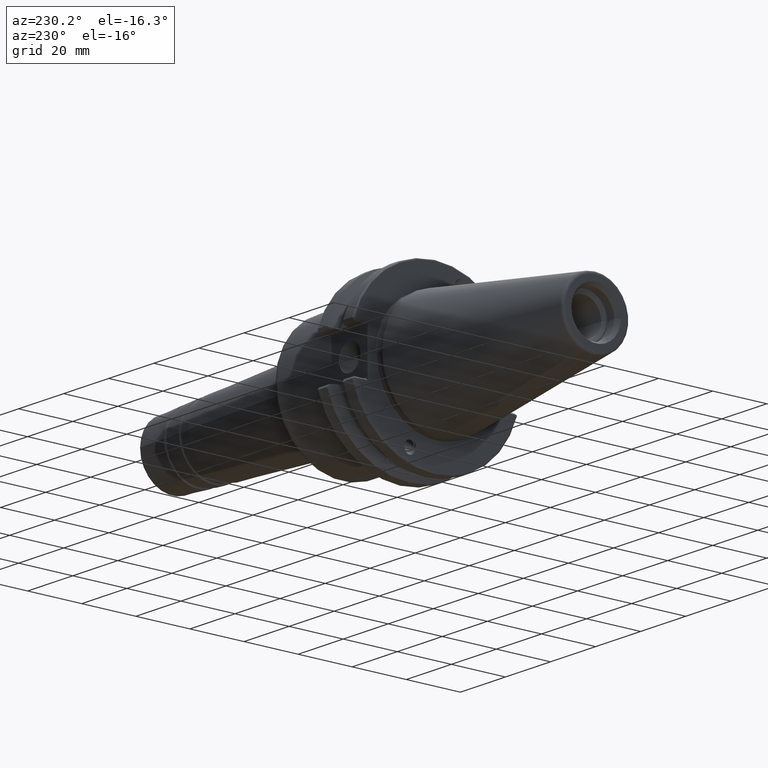
[diagram: clean part render]
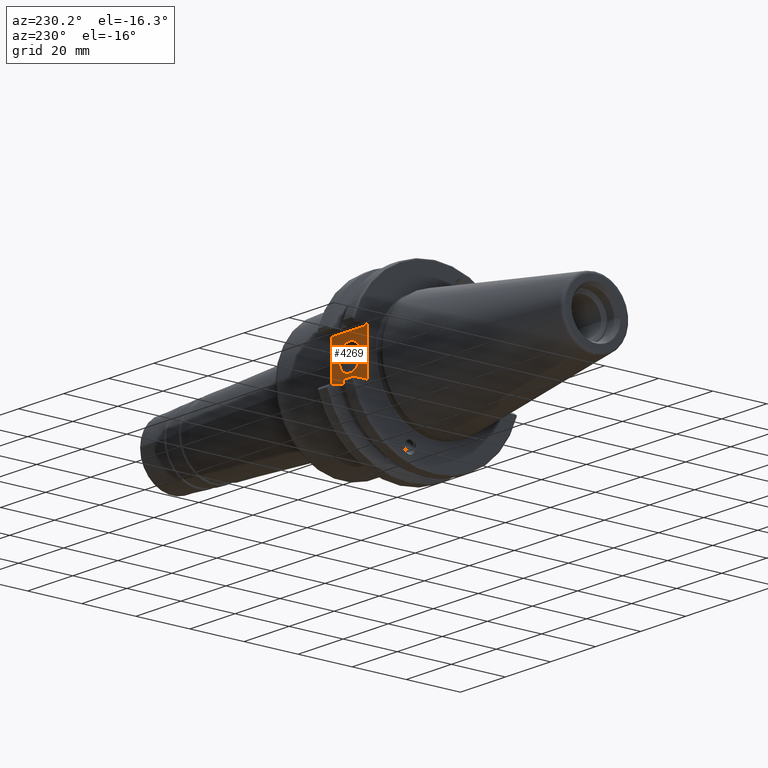
[diagram: same view with one face highlighted and labeled with its STEP entity id]
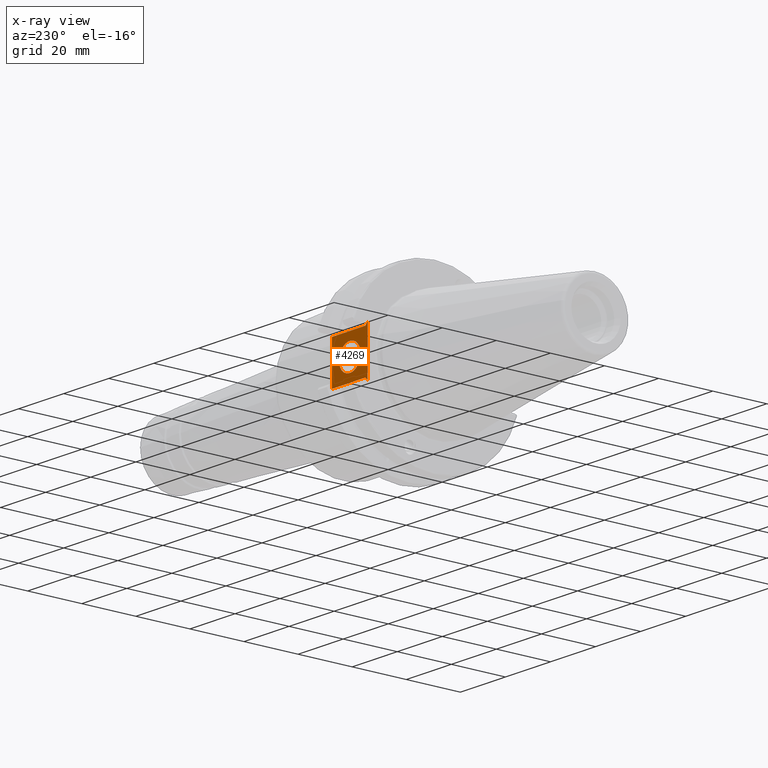
[diagram: x-ray of the same camera — body ghosted, the highlighted face saturated]
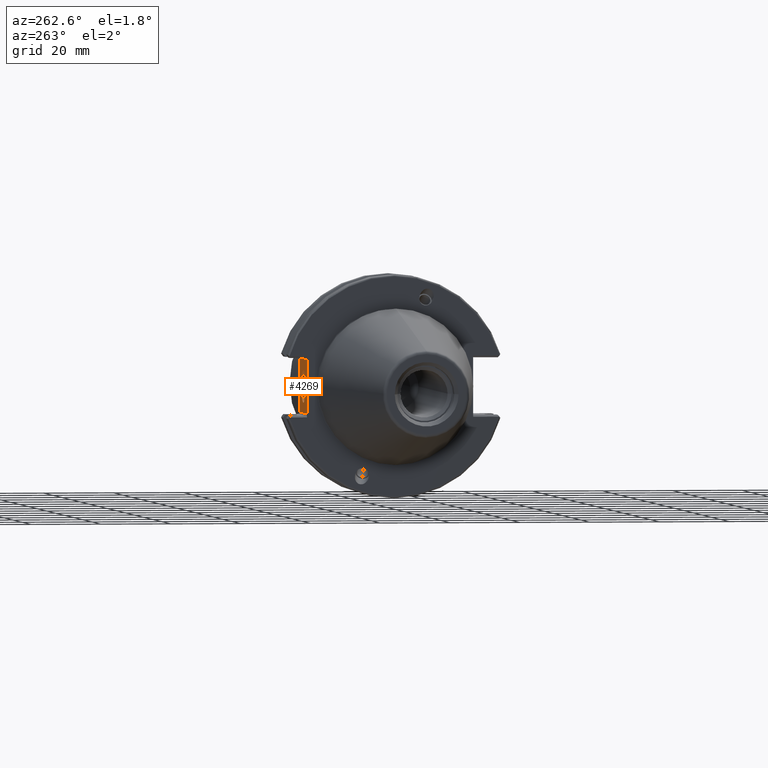
[diagram: same view with one face highlighted and labeled with its STEP entity id]
A machine part, auxiliary view. The second image highlights one B-rep face of the part: STEP entity #4269.
The next image is the same camera in x-ray: the body ghosted, the highlighted face saturated — about 0% of this face is hidden behind the body in this view.
A second angle (auxiliary view) of the same face is appended — the face is thin or edge-on in the first view.
In plain terms, the highlighted planar face has unit normal (0, 1, 0).
Its self-contained STEP definition (entity closure, byte-faithful):
#1529=CARTESIAN_POINT('',(1.11E1,2.5E1,0.E0));
#1530=DIRECTION('',(0.E0,1.E0,0.E0));
#1531=DIRECTION('',(1.E0,0.E0,0.E0));
#1532=AXIS2_PLACEMENT_3D('',#1529,#1530,#1531);
#1534=CARTESIAN_POINT('',(1.11E1,2.5E1,0.E0));
#1535=DIRECTION('',(0.E0,1.E0,0.E0));
#1536=DIRECTION('',(-1.E0,0.E0,0.E0));
#1537=AXIS2_PLACEMENT_3D('',#1534,#1535,#1536);
#1539=DIRECTION('',(0.E0,0.E0,-1.E0));
#1540=VECTOR('',#1539,1.538E1);
#1541=CARTESIAN_POINT('',(1.905E1,2.5E1,7.69E0));
#1542=LINE('',#1541,#1540);
#1543=DIRECTION('',(1.E0,0.E0,0.E0));
#1544=VECTOR('',#1543,1.4875E1);
#1545=CARTESIAN_POINT('',(4.175E0,2.5E1,7.69E0));
#1546=LINE('',#1545,#1544);
#1547=DIRECTION('',(0.E0,0.E0,-1.E0));
#1548=VECTOR('',#1547,1.738E1);
#1549=CARTESIAN_POINT('',(3.175E0,2.5E1,8.69E0));
#1550=LINE('',#1549,#1548);
#1551=DIRECTION('',(-1.E0,0.E0,0.E0));
#1552=VECTOR('',#1551,1.4875E1);
#1553=CARTESIAN_POINT('',(1.905E1,2.5E1,-7.69E0));
#1554=LINE('',#1553,#1552);
#1665=DIRECTION('',(7.071067811865E-1,0.E0,-7.071067811865E-1));
#1666=VECTOR('',#1665,1.414213562373E0);
#1667=CARTESIAN_POINT('',(3.175E0,2.5E1,8.69E0));
#1668=LINE('',#1667,#1666);
#1673=DIRECTION('',(-7.071067811865E-1,0.E0,-7.071067811865E-1));
#1674=VECTOR('',#1673,1.414213562373E0);
#1675=CARTESIAN_POINT('',(4.175E0,2.5E1,-7.69E0));
#1676=LINE('',#1675,#1674);
#2079=CARTESIAN_POINT('',(1.58625E1,2.5E1,0.E0));
#2080=CARTESIAN_POINT('',(6.3375E0,2.5E1,0.E0));
#2081=VERTEX_POINT('',#2079);
#2082=VERTEX_POINT('',#2080);
#2196=CARTESIAN_POINT('',(3.175E0,2.5E1,8.69E0));
#2198=VERTEX_POINT('',#2196);
#2203=CARTESIAN_POINT('',(3.175E0,2.5E1,-8.69E0));
#2205=VERTEX_POINT('',#2203);
#2231=CARTESIAN_POINT('',(4.175E0,2.5E1,7.69E0));
#2232=VERTEX_POINT('',#2231);
#2233=CARTESIAN_POINT('',(4.175E0,2.5E1,-7.69E0));
#2234=VERTEX_POINT('',#2233);
#2285=CARTESIAN_POINT('',(1.905E1,2.5E1,7.69E0));
#2286=CARTESIAN_POINT('',(1.905E1,2.5E1,-7.69E0));
#2287=VERTEX_POINT('',#2285);
#2288=VERTEX_POINT('',#2286);
#4247=CARTESIAN_POINT('',(0.E0,2.5E1,0.E0));
#4248=DIRECTION('',(0.E0,1.E0,0.E0));
#4249=DIRECTION('',(1.E0,0.E0,0.E0));
#4250=AXIS2_PLACEMENT_3D('',#4247,#4248,#4249);
#4251=PLANE('',#4250);
#4252=ORIENTED_EDGE('',*,*,#3301,.F.);
#4254=ORIENTED_EDGE('',*,*,#4253,.F.);
#4256=ORIENTED_EDGE('',*,*,#4255,.F.);
#4257=ORIENTED_EDGE('',*,*,#2602,.T.);
#4259=ORIENTED_EDGE('',*,*,#4258,.F.);
#4260=ORIENTED_EDGE('',*,*,#4239,.F.);
#4261=EDGE_LOOP('',(#4252,#4254,#4256,#4257,#4259,#4260));
#4262=FACE_OUTER_BOUND('',#4261,.F.);
#4264=ORIENTED_EDGE('',*,*,#4263,.T.);
#4266=ORIENTED_EDGE('',*,*,#4265,.T.);
#4267=EDGE_LOOP('',(#4264,#4266));
#4268=FACE_BOUND('',#4267,.F.);
#4269=ADVANCED_FACE('',(#4262,#4268),#4251,.T.);
#1533=CIRCLE('',#1532,4.7625E0);
#1538=CIRCLE('',#1537,4.7625E0);
#2602=EDGE_CURVE('',#2198,#2205,#1550,.T.);
#3301=EDGE_CURVE('',#2287,#2288,#1542,.T.);
#4239=EDGE_CURVE('',#2288,#2234,#1554,.T.);
#4253=EDGE_CURVE('',#2232,#2287,#1546,.T.);
#4255=EDGE_CURVE('',#2198,#2232,#1668,.T.);
#4258=EDGE_CURVE('',#2234,#2205,#1676,.T.);
#4263=EDGE_CURVE('',#2081,#2082,#1533,.T.);
#4265=EDGE_CURVE('',#2082,#2081,#1538,.T.);